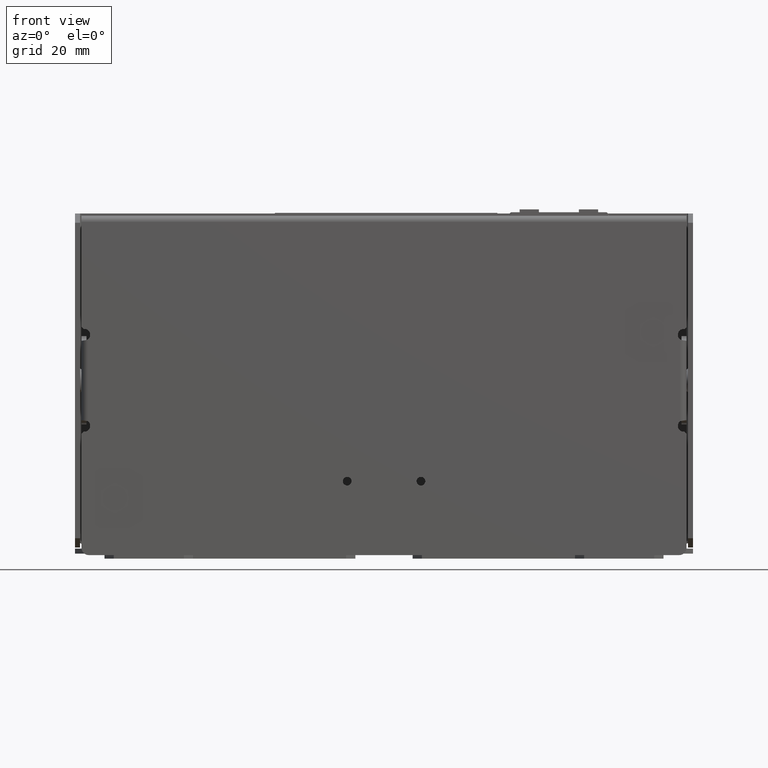
[diagram: clean part render]
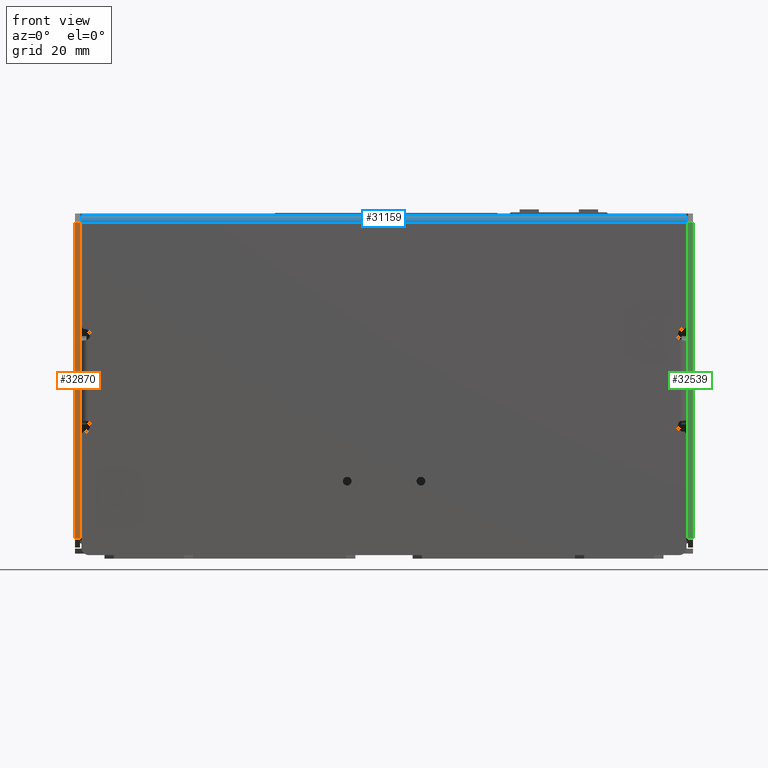
[diagram: same view with three faces highlighted in distinct colors, each labeled with its STEP entity id]
A machine part, front view with three faces highlighted in distinct colors.
Their STEP definitions:

[orange] entity #32870 — the highlighted planar face has unit normal (0, -1, 0).
#2357 = FACE_OUTER_BOUND ( 'NONE', #41463, .T. ) ;
#2371 = PLANE ( 'NONE',  #50261 ) ;
#2380 = CARTESIAN_POINT ( 'NONE',  ( -52.32399999999982800, -30.32760000000008600, -27.15259999999991400 ) ) ;
#2388 = DIRECTION ( 'NONE',  ( 3.491481338843132200E-015, -1.000000000000000000, 1.099644633393387400E-015 ) ) ;
#2390 = DIRECTION ( 'NONE',  ( -1.099644633393387500E-015, 1.099644633393383600E-015, 1.000000000000000000 ) ) ;
#3907 = VECTOR ( 'NONE', #5782, 1000.000000000000000 ) ;
#3939 = VECTOR ( 'NONE', #5841, 1000.000000000000000 ) ;
#3956 = VECTOR ( 'NONE', #5854, 1000.000000000000000 ) ;
#5772 = LINE ( 'NONE', #5781, #3907 ) ;
#5781 = CARTESIAN_POINT ( 'NONE',  ( -53.18759999999982600, -30.32760000000008600, -27.15259999999991400 ) ) ;
#5782 = DIRECTION ( 'NONE',  ( -1.099644633393387500E-015, 1.099644633393383600E-015, 1.000000000000000000 ) ) ;
#5825 = CARTESIAN_POINT ( 'NONE',  ( -52.32399999999982800, -30.32760000000008600, -27.15259999999991400 ) ) ;
#5836 = LINE ( 'NONE', #5825, #3939 ) ;
#5841 = DIRECTION ( 'NONE',  ( -1.099644633393387500E-015, 1.099644633393383600E-015, 1.000000000000000000 ) ) ;
#5843 = LINE ( 'NONE', #5853, #3956 ) ;
#5853 = CARTESIAN_POINT ( 'NONE',  ( -52.32399999999989100, -30.32760000000003200, 27.15260000000000700 ) ) ;
#5854 = DIRECTION ( 'NONE',  ( -1.000000000000000000, -3.491481338843133400E-015, -1.099644633393383600E-015 ) ) ;
#6198 = LINE ( 'NONE', #6199, #15169 ) ;
#6199 = CARTESIAN_POINT ( 'NONE',  ( -52.32399999999982800, -30.32760000000008600, -27.15259999999991400 ) ) ;
#6200 = DIRECTION ( 'NONE',  ( -1.000000000000000000, -3.491481338843133400E-015, -1.099644633393383600E-015 ) ) ;
#12357 = ORIENTED_EDGE ( 'NONE', *, *, #37417, .F. ) ;
#15169 = VECTOR ( 'NONE', #6200, 1000.000000000000000 ) ;
#32870 = ADVANCED_FACE ( 'NONE', ( #2357 ), #2371, .T. ) ;
#34354 = ORIENTED_EDGE ( 'NONE', *, *, #37287, .F. ) ;
#37287 = EDGE_CURVE ( 'NONE', #42342, #41964, #5772, .T. ) ;
#37303 = EDGE_CURVE ( 'NONE', #41966, #41974, #5836, .T. ) ;
#37308 = EDGE_CURVE ( 'NONE', #41974, #41964, #5843, .T. ) ;
#37417 = EDGE_CURVE ( 'NONE', #41966, #42342, #6198, .T. ) ;
#41463 = EDGE_LOOP ( 'NONE', ( #34354, #12357, #47677, #47833 ) ) ;
#41964 = VERTEX_POINT ( 'NONE', #43193 ) ;
#41966 = VERTEX_POINT ( 'NONE', #43195 ) ;
#41974 = VERTEX_POINT ( 'NONE', #43203 ) ;
#42342 = VERTEX_POINT ( 'NONE', #43511 ) ;
#43193 = CARTESIAN_POINT ( 'NONE',  ( -53.18759999999989000, -30.32760000000003200, 27.15260000000000700 ) ) ;
#43195 = CARTESIAN_POINT ( 'NONE',  ( -52.32399999999982800, -30.32760000000008600, -27.15259999999991400 ) ) ;
#43203 = CARTESIAN_POINT ( 'NONE',  ( -52.32399999999989100, -30.32760000000003200, 27.15260000000000700 ) ) ;
#43511 = CARTESIAN_POINT ( 'NONE',  ( -53.18759999999982600, -30.32760000000008600, -27.15259999999991400 ) ) ;
#47677 = ORIENTED_EDGE ( 'NONE', *, *, #37303, .T. ) ;
#47833 = ORIENTED_EDGE ( 'NONE', *, *, #37308, .T. ) ;
#50261 = AXIS2_PLACEMENT_3D ( 'NONE', #2380, #2388, #2390 ) ;

[blue] entity #31159 — the highlighted cylindrical surface (edge-blend (fillet) strip) has radius 1.0668 mm, axis along (1, 0, 0).
#3950 = AXIS2_PLACEMENT_3D ( 'NONE', #5491, #5492, #5493 ) ;
#3977 = VECTOR ( 'NONE', #5540, 1000.000000000000000 ) ;
#4044 = CIRCLE ( 'NONE', #3950, 1.066799999999999700 ) ;
#5491 = CARTESIAN_POINT ( 'NONE',  ( -52.06999999999997900, -1.066800000000000200, -27.29229999999999000 ) ) ;
#5492 = DIRECTION ( 'NONE',  ( -1.000000000000000000, 0.0000000000000000000, 0.0000000000000000000 ) ) ;
#5493 = DIRECTION ( 'NONE',  ( 0.0000000000000000000, 0.0000000000000000000, -1.000000000000000000 ) ) ;
#5504 = LINE ( 'NONE', #5538, #3977 ) ;
#5538 = CARTESIAN_POINT ( 'NONE',  ( 54.35599999745999600, -1.066800000000003100, -28.35909999999999100 ) ) ;
#5540 = DIRECTION ( 'NONE',  ( -1.000000000000000000, 0.0000000000000000000, -0.0000000000000000000 ) ) ;
#11602 = LINE ( 'NONE', #11614, #15442 ) ;
#11614 = CARTESIAN_POINT ( 'NONE',  ( 54.35599999745999600, 0.0000000000000000000, -27.29229999999999000 ) ) ;
#11615 = DIRECTION ( 'NONE',  ( -1.000000000000000000, 0.0000000000000000000, 0.0000000000000000000 ) ) ;
#12304 = ORIENTED_EDGE ( 'NONE', *, *, #37607, .F. ) ;
#15442 = VECTOR ( 'NONE', #11615, 1000.000000000000000 ) ;
#17403 = EDGE_LOOP ( 'NONE', ( #47748, #12304, #30478, #30454 ) ) ;
#19183 = AXIS2_PLACEMENT_3D ( 'NONE', #51319, #51321, #51325 ) ;
#25199 = AXIS2_PLACEMENT_3D ( 'NONE', #37980, #37981, #37982 ) ;
#26012 = CIRCLE ( 'NONE', #25199, 1.066799999999999700 ) ;
#29522 = EDGE_CURVE ( 'NONE', #42331, #41615, #26012, .T. ) ;
#30454 = ORIENTED_EDGE ( 'NONE', *, *, #37206, .T. ) ;
#30478 = ORIENTED_EDGE ( 'NONE', *, *, #29522, .F. ) ;
#31159 = ADVANCED_FACE ( 'NONE', ( #51323 ), #51324, .T. ) ;
#37190 = EDGE_CURVE ( 'NONE', #41613, #41987, #4044, .T. ) ;
#37206 = EDGE_CURVE ( 'NONE', #42331, #41987, #5504, .T. ) ;
#37607 = EDGE_CURVE ( 'NONE', #41615, #41613, #11602, .T. ) ;
#37980 = CARTESIAN_POINT ( 'NONE',  ( 52.07000000000000700, -1.066800000000000200, -27.29229999999999000 ) ) ;
#37981 = DIRECTION ( 'NONE',  ( 1.000000000000000000, -0.0000000000000000000, -0.0000000000000000000 ) ) ;
#37982 = DIRECTION ( 'NONE',  ( 0.0000000000000000000, 0.0000000000000000000, -1.000000000000000000 ) ) ;
#41613 = VERTEX_POINT ( 'NONE', #43030 ) ;
#41615 = VERTEX_POINT ( 'NONE', #43032 ) ;
#41987 = VERTEX_POINT ( 'NONE', #43216 ) ;
#42331 = VERTEX_POINT ( 'NONE', #43500 ) ;
#43030 = CARTESIAN_POINT ( 'NONE',  ( -52.06999999999997900, 0.0000000000000000000, -27.29230000000000800 ) ) ;
#43032 = CARTESIAN_POINT ( 'NONE',  ( 52.07000000000000700, 0.0000000000000000000, -27.29229999999999700 ) ) ;
#43216 = CARTESIAN_POINT ( 'NONE',  ( -52.06999999999997200, -1.066800000000010200, -28.35909999999999100 ) ) ;
#43500 = CARTESIAN_POINT ( 'NONE',  ( 52.07000000000000700, -1.066800000000003100, -28.35909999999999100 ) ) ;
#47748 = ORIENTED_EDGE ( 'NONE', *, *, #37190, .F. ) ;
#51319 = CARTESIAN_POINT ( 'NONE',  ( -104.1453648374232300, -1.066800000000000200, -27.29229999999999000 ) ) ;
#51321 = DIRECTION ( 'NONE',  ( 1.000000000000000000, -0.0000000000000000000, -0.0000000000000000000 ) ) ;
#51323 = FACE_OUTER_BOUND ( 'NONE', #17403, .T. ) ;
#51324 = CYLINDRICAL_SURFACE ( 'NONE', #19183, 1.066799999999999700 ) ;
#51325 = DIRECTION ( 'NONE',  ( 0.0000000000000000000, 0.0000000000000000000, -1.000000000000000000 ) ) ;

[green] entity #32539 — the highlighted planar face has unit normal (-0, -1, 0).
#5883 = LINE ( 'NONE', #5884, #14590 ) ;
#5884 = CARTESIAN_POINT ( 'NONE',  ( 52.32399999999990600, -30.32760000000001800, 27.15260000000002800 ) ) ;
#5894 = LINE ( 'NONE', #5913, #15511 ) ;
#5895 = DIRECTION ( 'NONE',  ( 1.000000000000000000, -3.491481338843133400E-015, 0.0000000000000000000 ) ) ;
#5898 = LINE ( 'NONE', #5900, #14643 ) ;
#5900 = CARTESIAN_POINT ( 'NONE',  ( 52.32399999999990600, -30.32760000000001800, 27.15260000000002800 ) ) ;
#5901 = DIRECTION ( 'NONE',  ( 0.0000000000000000000, -0.0000000000000000000, -1.000000000000000000 ) ) ;
#5907 = LINE ( 'NONE', #5908, #15498 ) ;
#5908 = CARTESIAN_POINT ( 'NONE',  ( 53.18759999999990400, -30.32760000000001800, 27.15260000000002800 ) ) ;
#5909 = DIRECTION ( 'NONE',  ( 0.0000000000000000000, -0.0000000000000000000, -1.000000000000000000 ) ) ;
#5913 = CARTESIAN_POINT ( 'NONE',  ( 52.32399999999990600, -30.32760000000001800, -27.15259999999987500 ) ) ;
#5914 = DIRECTION ( 'NONE',  ( 1.000000000000000000, -3.491481338843133400E-015, 0.0000000000000000000 ) ) ;
#14590 = VECTOR ( 'NONE', #5895, 1000.000000000000000 ) ;
#14643 = VECTOR ( 'NONE', #5901, 1000.000000000000000 ) ;
#14664 = CARTESIAN_POINT ( 'NONE',  ( 52.32399999999990600, -30.32760000000001800, 27.15260000000002800 ) ) ;
#14666 = FACE_OUTER_BOUND ( 'NONE', #17588, .T. ) ;
#14668 = PLANE ( 'NONE',  #25107 ) ;
#14677 = DIRECTION ( 'NONE',  ( -3.491481338843133400E-015, -1.000000000000000000, 0.0000000000000000000 ) ) ;
#14679 = DIRECTION ( 'NONE',  ( 0.0000000000000000000, -0.0000000000000000000, -1.000000000000000000 ) ) ;
#15498 = VECTOR ( 'NONE', #5909, 1000.000000000000000 ) ;
#15511 = VECTOR ( 'NONE', #5914, 1000.000000000000000 ) ;
#17588 = EDGE_LOOP ( 'NONE', ( #34561, #47580, #47557, #47630 ) ) ;
#25107 = AXIS2_PLACEMENT_3D ( 'NONE', #14664, #14677, #14679 ) ;
#32539 = ADVANCED_FACE ( 'NONE', ( #14666 ), #14668, .T. ) ;
#34561 = ORIENTED_EDGE ( 'NONE', *, *, #37326, .F. ) ;
#37321 = EDGE_CURVE ( 'NONE', #41976, #41972, #5883, .T. ) ;
#37323 = EDGE_CURVE ( 'NONE', #41976, #41990, #5898, .T. ) ;
#37326 = EDGE_CURVE ( 'NONE', #41972, #41980, #5907, .T. ) ;
#37328 = EDGE_CURVE ( 'NONE', #41990, #41980, #5894, .T. ) ;
#41972 = VERTEX_POINT ( 'NONE', #43201 ) ;
#41976 = VERTEX_POINT ( 'NONE', #43205 ) ;
#41980 = VERTEX_POINT ( 'NONE', #43209 ) ;
#41990 = VERTEX_POINT ( 'NONE', #43219 ) ;
#43201 = CARTESIAN_POINT ( 'NONE',  ( 53.18759999999990400, -30.32760000000001800, 27.15260000000002800 ) ) ;
#43205 = CARTESIAN_POINT ( 'NONE',  ( 52.32399999999990600, -30.32760000000001800, 27.15260000000002800 ) ) ;
#43209 = CARTESIAN_POINT ( 'NONE',  ( 53.18759999999990400, -30.32760000000001800, -27.15259999999987500 ) ) ;
#43219 = CARTESIAN_POINT ( 'NONE',  ( 52.32399999999990600, -30.32760000000001800, -27.15259999999987500 ) ) ;
#47557 = ORIENTED_EDGE ( 'NONE', *, *, #37323, .T. ) ;
#47580 = ORIENTED_EDGE ( 'NONE', *, *, #37321, .F. ) ;
#47630 = ORIENTED_EDGE ( 'NONE', *, *, #37328, .T. ) ;